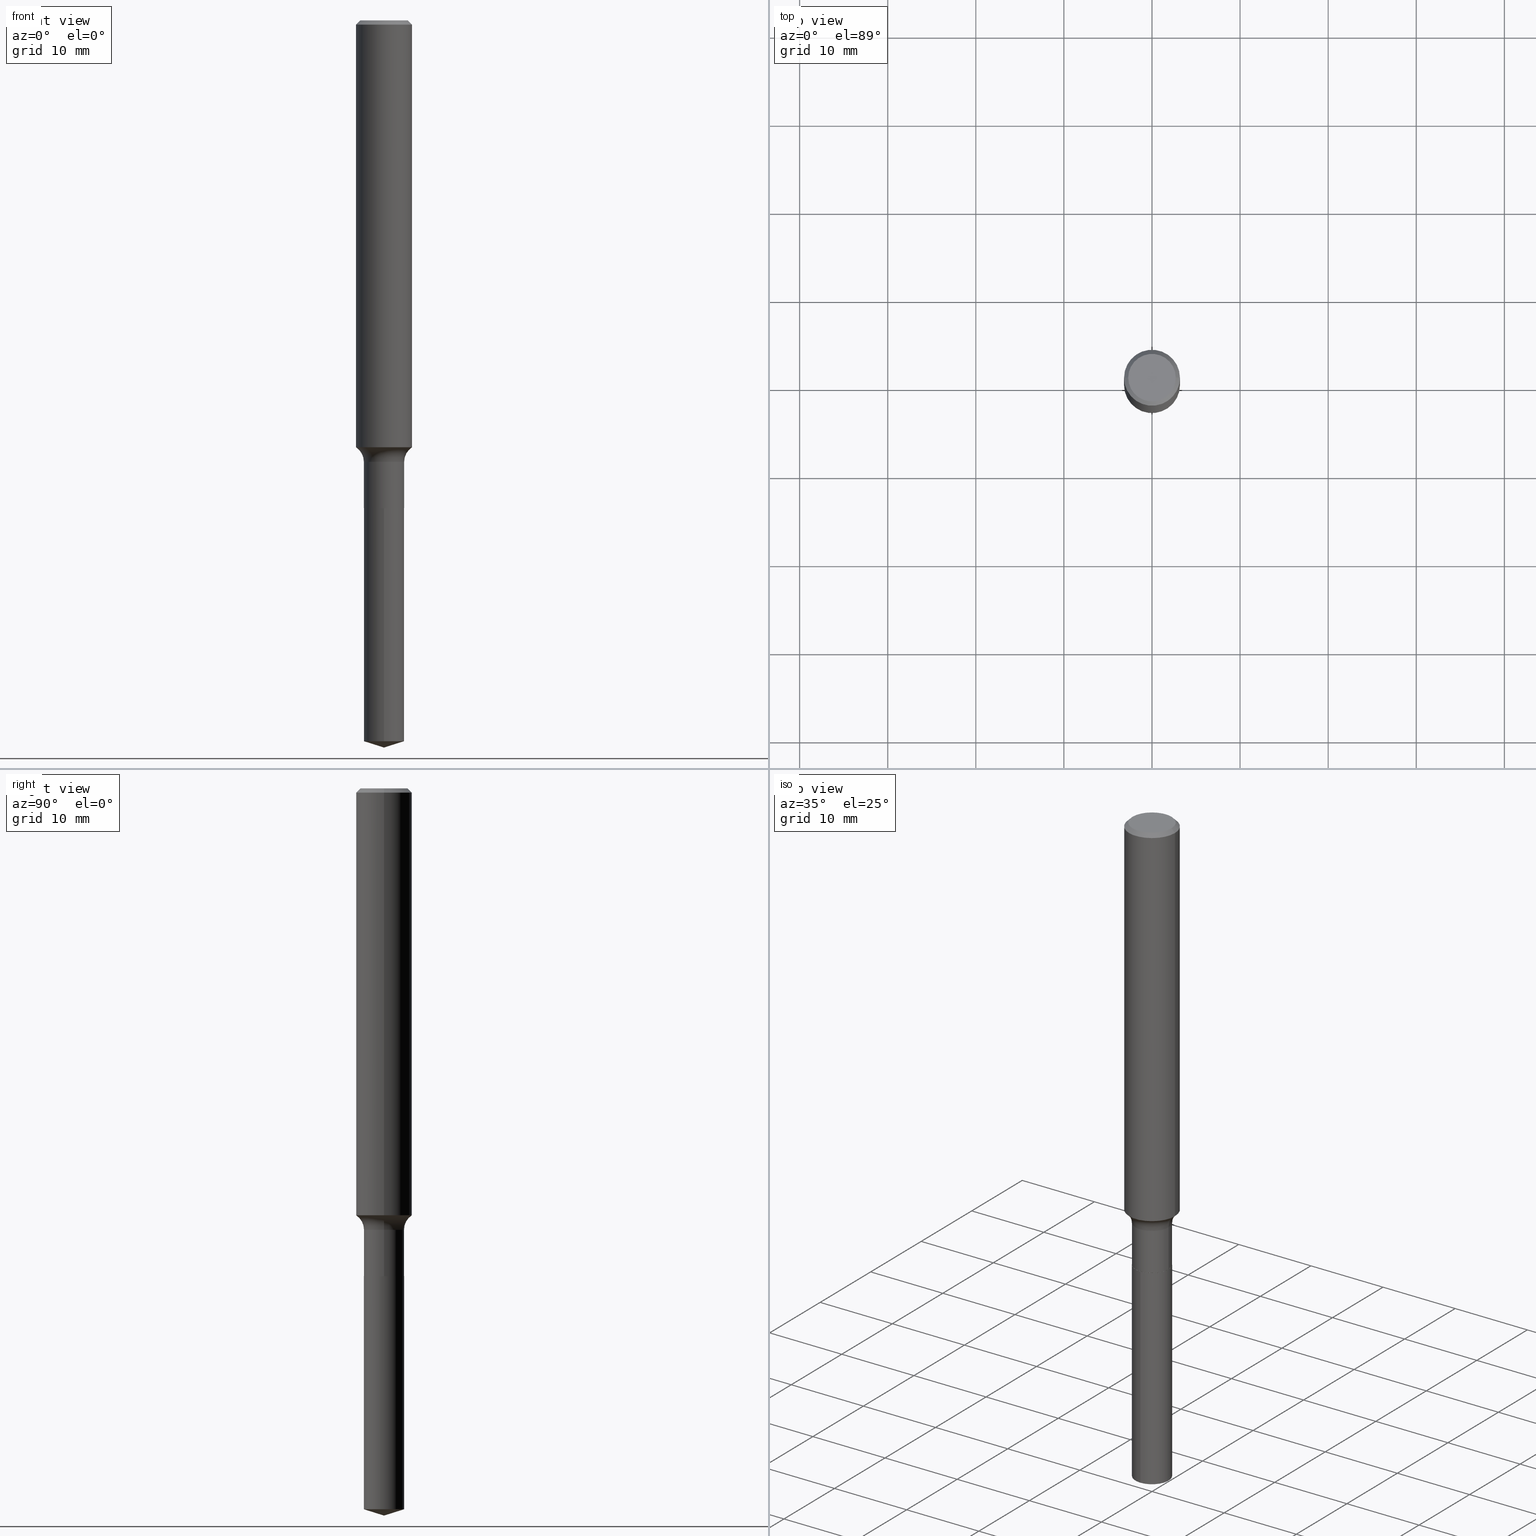
[diagram: canonical four-view strip — front | top / right | iso, engineering-drawing reading convention]
A machine part, canonical four-view strip (front | top / right | iso — engineering-drawing reading convention). The complete STEP part file that produces these views, byte-faithful:
ISO-10303-21;
HEADER;
FILE_DESCRIPTION (( 'STEP AP203' ),
    '1' );
FILE_NAME ('52327.STEP',
    '2024-04-19T13:40:41',
    ( '' ),
    ( '' ),
    'SwSTEP 2.0',
    'SolidWorks 2023',
    '' );
FILE_SCHEMA (( 'CONFIG_CONTROL_DESIGN' ));
ENDSEC;

DATA;
#1 = ORIENTED_EDGE ( 'NONE', *, *, #49, .T. ) ;
#2 = VECTOR ( 'NONE', #419, 39.37007874015748143 ) ;
#3 = DIRECTION ( 'NONE',  ( 0.7071067811865447972, -7.319954787623245001E-15, -0.7071067811865501263 ) ) ;
#4 = ADVANCED_FACE ( 'NONE', ( #385 ), #308, .T. ) ;
#5 = ADVANCED_FACE ( 'NONE', ( #84 ), #61, .T. ) ;
#6 = VERTEX_POINT ( 'NONE', #343 ) ;
#7 = ADVANCED_FACE ( 'NONE', ( #234 ), #381, .F. ) ;
#8 = CARTESIAN_POINT ( 'NONE',  ( 0.000000000000000000, 0.000000000000000000, 0.000000000000000000 ) ) ;
#9 = ORIENTED_EDGE ( 'NONE', *, *, #406, .T. ) ;
#10 = ORIENTED_EDGE ( 'NONE', *, *, #340, .T. ) ;
#11 = AXIS2_PLACEMENT_3D ( 'NONE', #395, #247, #356 ) ;
#12 = CARTESIAN_POINT ( 'NONE',  ( 0.000000000000000000, 0.000000000000000000, 0.000000000000000000 ) ) ;
#13 = ORIENTED_EDGE ( 'NONE', *, *, #139, .F. ) ;
#14 = LINE ( 'NONE', #251, #397 ) ;
#15 = LINE ( 'NONE', #432, #382 ) ;
#16 = CARTESIAN_POINT ( 'NONE',  ( -0.1062499999999999972, 7.746724220558198188E-16, 6.505936120465015526E-18 ) ) ;
#17 = LINE ( 'NONE', #54, #179 ) ;
#18 = AXIS2_PLACEMENT_3D ( 'NONE', #211, #243, #160 ) ;
#19 = ADVANCED_FACE ( 'NONE', ( #127 ), #421, .T. ) ;
#20 = CALENDAR_DATE ( 2024, 19, 4 ) ;
#21 = CIRCLE ( 'NONE', #422, 0.1250000000000000000 ) ;
#22 = CARTESIAN_POINT ( 'NONE',  ( 5.331121997483597646E-29, -7.611429318678056905E-15, -2.180000000000000160 ) ) ;
#23 = CIRCLE ( 'NONE', #287, 0.08999999999999999667 ) ;
#24 = ORIENTED_EDGE ( 'NONE', *, *, #325, .T. ) ;
#25 = SHAPE_DEFINITION_REPRESENTATION ( #490, #173 ) ;
#26 = CYLINDRICAL_SURFACE ( 'NONE', #403, 0.1250000000000001110 ) ;
#27 = ORIENTED_EDGE ( 'NONE', *, *, #172, .F. ) ;
#28 = CARTESIAN_POINT ( 'NONE',  ( 7.947831552913192998E-29, -1.134723235276303104E-14, -3.250000000000000000 ) ) ;
#29 = APPROVAL ( #60, 'UNSPECIFIED' ) ;
#30 = ORIENTED_EDGE ( 'NONE', *, *, #52, .T. ) ;
#31 = VECTOR ( 'NONE', #407, 39.37007874015748143 ) ;
#32 = VERTEX_POINT ( 'NONE', #470 ) ;
#33 = FACE_OUTER_BOUND ( 'NONE', #157, .T. ) ;
#34 = VERTEX_POINT ( 'NONE', #359 ) ;
#35 = CARTESIAN_POINT ( 'NONE',  ( 6.394884621841690297E-16, 0.08999999999999239164, -2.180000000000000160 ) ) ;
#36 = DIRECTION ( 'NONE',  ( 1.000000000000000000, -6.982962677686262766E-15, 0.000000000000000000 ) ) ;
#37 = DIRECTION ( 'NONE',  ( -1.000000000000000000, 7.105427357601001859E-15, 0.000000000000000000 ) ) ;
#38 = VERTEX_POINT ( 'NONE', #369 ) ;
#39 = CONICAL_SURFACE ( 'NONE', #88, 124.8659371009120775, 1.265363707695884798 ) ;
#40 = FACE_OUTER_BOUND ( 'NONE', #332, .T. ) ;
#41 = ORIENTED_EDGE ( 'NONE', *, *, #193, .T. ) ;
#42 = ORIENTED_EDGE ( 'NONE', *, *, #358, .F. ) ;
#43 = ORIENTED_EDGE ( 'NONE', *, *, #187, .T. ) ;
#44 = CONICAL_SURFACE ( 'NONE', #55, 124.8659371009120775, 1.265363707695884798 ) ;
#45 = AXIS2_PLACEMENT_3D ( 'NONE', #284, #175, #469 ) ;
#46 =( NAMED_UNIT ( * ) PLANE_ANGLE_UNIT ( ) SI_UNIT ( $, .RADIAN. ) );
#47 = DIRECTION ( 'NONE',  ( -6.982962677686265133E-15, -1.000000000000000000, 6.070773319253918263E-15 ) ) ;
#48 = CYLINDRICAL_SURFACE ( 'NONE', #114, 0.08999999999999999667 ) ;
#49 = EDGE_CURVE ( 'NONE', #112, #131, #295, .T. ) ;
#50 = UNCERTAINTY_MEASURE_WITH_UNIT (LENGTH_MEASURE( 1.000000000000000082E-05 ), #386, 'distance_accuracy_value', 'NONE');
#51 = DIRECTION ( 'NONE',  ( -2.445486424409932831E-29, 3.491456108542470269E-15, 1.000000000000000000 ) ) ;
#52 = EDGE_CURVE ( 'NONE', #34, #350, #445, .T. ) ;
#53 = CARTESIAN_POINT ( 'NONE',  ( 4.585254011597165626E-31, -6.546527510330947764E-17, -0.01875000000000014155 ) ) ;
#54 = CARTESIAN_POINT ( 'NONE',  ( -0.1250000000000001110, 8.881784197001260212E-16, -6.148668862818637832E-30 ) ) ;
#55 = AXIS2_PLACEMENT_3D ( 'NONE', #435, #333, #371 ) ;
#56 = CONICAL_SURFACE ( 'NONE', #391, 0.1250000000000000000, 0.7853981633974445042 ) ;
#57 = DATE_AND_TIME ( #20, #206 ) ;
#58 = ADVANCED_FACE ( 'NONE', ( #68 ), #394, .F. ) ;
#59 = DATE_TIME_ROLE ( 'creation_date' ) ;
#60 = APPROVAL_STATUS ( 'not_yet_approved' ) ;
#61 = CONICAL_SURFACE ( 'NONE', #314, 0.08949999999999999623, 0.7853981633975507526 ) ;
#62 = AXIS2_PLACEMENT_3D ( 'NONE', #203, #434, #425 ) ;
#63 = CARTESIAN_POINT ( 'NONE',  ( 0.1679999999999999549, -8.061830411388819025E-15, -1.973000000000000309 ) ) ;
#64 = AXIS2_PLACEMENT_3D ( 'NONE', #378, #341, #492 ) ;
#65 = APPROVAL_PERSON_ORGANIZATION ( #141, #360, #324 ) ;
#66 = ORIENTED_EDGE ( 'NONE', *, *, #89, .T. ) ;
#67 = PERSON_AND_ORGANIZATION ( #456, #383 ) ;
#68 = FACE_OUTER_BOUND ( 'NONE', #370, .T. ) ;
#69 = ORIENTED_EDGE ( 'NONE', *, *, #146, .F. ) ;
#70 = FACE_OUTER_BOUND ( 'NONE', #123, .T. ) ;
#71 = EDGE_LOOP ( 'NONE', ( #43, #218, #77, #27 ) ) ;
#72 = CARTESIAN_POINT ( 'NONE',  ( 4.824909954603274806E-29, -6.888692681537526817E-15, -1.973000000000000309 ) ) ;
#73 = AXIS2_PLACEMENT_3D ( 'NONE', #213, #335, #174 ) ;
#74 = CIRCLE ( 'NONE', #374, 0.08999999999999999667 ) ;
#75 = PRODUCT_RELATED_PRODUCT_CATEGORY ( 'detail', '', ( #433 ) ) ;
#76 = LOCAL_TIME ( 9, 40, 41.00000000000000000, #323 ) ;
#77 = ORIENTED_EDGE ( 'NONE', *, *, #427, .F. ) ;
#78 = DIRECTION ( 'NONE',  ( 2.445468806185136597E-29, -3.491481338843145583E-15, -1.000000000000000000 ) ) ;
#79 = EDGE_CURVE ( 'NONE', #240, #189, #149, .T. ) ;
#80 = MANIFOLD_SOLID_BREP ( 'Body-Move/Copy2[2]', #86 ) ;
#81 = ORIENTED_EDGE ( 'NONE', *, *, #82, .F. ) ;
#82 = EDGE_CURVE ( 'NONE', #451, #366, #17, .T. ) ;
#83 = DIRECTION ( 'NONE',  ( -2.445468806185136597E-29, 3.491481338843145583E-15, 1.000000000000000000 ) ) ;
#84 = FACE_OUTER_BOUND ( 'NONE', #272, .T. ) ;
#85 = DIRECTION ( 'NONE',  ( 1.000000000000000000, -6.982962677686264344E-15, 0.000000000000000000 ) ) ;
#86 = CLOSED_SHELL ( 'NONE', ( #313, #486, #130, #192, #298, #19, #354, #342, #245, #7, #58, #5 ) ) ;
#87 = CARTESIAN_POINT ( 'NONE',  ( 0.000000000000000000, 0.000000000000000000, 0.000000000000000000 ) ) ;
#88 = AXIS2_PLACEMENT_3D ( 'NONE', #452, #196, #124 ) ;
#89 = EDGE_CURVE ( 'NONE', #186, #197, #236, .T. ) ;
#90 = DIRECTION ( 'NONE',  ( -2.445468806185136597E-29, 3.491481338843145583E-15, 1.000000000000000000 ) ) ;
#91 = ORIENTED_EDGE ( 'NONE', *, *, #79, .F. ) ;
#92 = DIRECTION ( 'NONE',  ( -2.445468806185136597E-29, 3.491481338843145583E-15, 1.000000000000000000 ) ) ;
#93 = ORIENTED_EDGE ( 'NONE', *, *, #170, .T. ) ;
#94 = ADVANCED_FACE ( 'NONE', ( #151 ), #44, .T. ) ;
#95 = DIRECTION ( 'NONE',  ( -6.982962677686265133E-15, -1.000000000000000000, 3.035386659626959132E-15 ) ) ;
#96 = DIRECTION ( 'NONE',  ( -2.445468806185136597E-29, 3.491481338843145583E-15, 1.000000000000000000 ) ) ;
#97 = CIRCLE ( 'NONE', #365, 0.08999999999999998279 ) ;
#98 = CIRCLE ( 'NONE', #64, 0.08999999999999999667 ) ;
#99 = CC_DESIGN_PERSON_AND_ORGANIZATION_ASSIGNMENT ( #255, #329, ( #229 ) ) ;
#100 = LINE ( 'NONE', #171, #299 ) ;
#101 = DIRECTION ( 'NONE',  ( 0.7071067811866199593, -2.468850131083015945E-15, 0.7071067811864750752 ) ) ;
#102 = EDGE_CURVE ( 'NONE', #112, #240, #269, .T. ) ;
#103 = DIRECTION ( 'NONE',  ( -2.445468806185136597E-29, 3.491481338843145583E-15, 1.000000000000000000 ) ) ;
#104 = DESIGN_CONTEXT ( 'detailed design', #162, 'design' ) ;
#105 = DIRECTION ( 'NONE',  ( 1.000000000000000000, -6.982962677686267499E-15, 4.876176775795936353E-29 ) ) ;
#106 = DATE_AND_TIME ( #138, #76 ) ;
#107 = EDGE_CURVE ( 'NONE', #116, #125, #454, .T. ) ;
#108 = APPROVAL_DATE_TIME ( #217, #331 ) ;
#109 = CIRCLE ( 'NONE', #45, 0.1250000000000002498 ) ;
#110 = PERSON_AND_ORGANIZATION ( #456, #383 ) ;
#111 = CARTESIAN_POINT ( 'NONE',  ( 6.394884621841432931E-16, 0.08999999999999237776, -2.180000000000000160 ) ) ;
#112 = VERTEX_POINT ( 'NONE', #260 ) ;
#113 = CC_DESIGN_DATE_AND_TIME_ASSIGNMENT ( #57, #293, ( #439 ) ) ;
#114 = AXIS2_PLACEMENT_3D ( 'NONE', #393, #361, #472 ) ;
#115 = CARTESIAN_POINT ( 'NONE',  ( 4.824909954603274806E-29, -6.888692681537526817E-15, -1.973000000000000309 ) ) ;
#116 = VERTEX_POINT ( 'NONE', #429 ) ;
#117 = CARTESIAN_POINT ( 'NONE',  ( 0.000000000000000000, 0.000000000000000000, 0.000000000000000000 ) ) ;
#118 = DIRECTION ( 'NONE',  ( 6.982962677686265922E-15, 1.000000000000000000, -3.491456108542470269E-15 ) ) ;
#119 = ORIENTED_EDGE ( 'NONE', *, *, #242, .F. ) ;
#120 = EDGE_CURVE ( 'NONE', #366, #32, #21, .T. ) ;
#121 = LINE ( 'NONE', #198, #2 ) ;
#122 = APPROVAL_PERSON_ORGANIZATION ( #401, #29, #178 ) ;
#123 = EDGE_LOOP ( 'NONE', ( #222, #416, #372, #491 ) ) ;
#124 = DIRECTION ( 'NONE',  ( -6.982962677686265922E-15, -1.000000000000000000, 3.500519750498788051E-15 ) ) ;
#125 = VERTEX_POINT ( 'NONE', #221 ) ;
#126 = CARTESIAN_POINT ( 'NONE',  ( 5.331121997483597646E-29, -7.611429318678056905E-15, -2.180000000000000160 ) ) ;
#127 = FACE_OUTER_BOUND ( 'NONE', #483, .T. ) ;
#128 = CARTESIAN_POINT ( 'NONE',  ( 5.331121997483597646E-29, -7.611429318678056905E-15, -2.180000000000000160 ) ) ;
#129 = AXIS2_PLACEMENT_3D ( 'NONE', #126, #228, #118 ) ;
#130 = ADVANCED_FACE ( 'NONE', ( #286 ), #26, .T. ) ;
#131 = VERTEX_POINT ( 'NONE', #188 ) ;
#132 = DIRECTION ( 'NONE',  ( 1.000000000000000000, 0.000000000000000000, 0.000000000000000000 ) ) ;
#133 = VERTEX_POINT ( 'NONE', #330 ) ;
#134 = CARTESIAN_POINT ( 'NONE',  ( -0.1250000000000000000, -2.475293206730392675E-15, -0.01875000000000014155 ) ) ;
#135 = CARTESIAN_POINT ( 'NONE',  ( 4.585254011597165626E-31, -6.546527510330947764E-17, -0.01875000000000014155 ) ) ;
#136 = CARTESIAN_POINT ( 'NONE',  ( -0.1250000000000001943, -5.773299558057605382E-15, -1.907923122385904335 ) ) ;
#137 = CARTESIAN_POINT ( 'NONE',  ( 5.329899263080504845E-29, -7.609683578008636190E-15, -2.179499999999999993 ) ) ;
#138 = CALENDAR_DATE ( 2024, 19, 4 ) ;
#139 = EDGE_CURVE ( 'NONE', #38, #350, #97, .T. ) ;
#140 = VECTOR ( 'NONE', #145, 39.37007874015748143 ) ;
#141 = PERSON_AND_ORGANIZATION ( #456, #383 ) ;
#142 = CONICAL_SURFACE ( 'NONE', #478, 0.08949999999999999623, 0.7853981633975507526 ) ;
#143 = LOCAL_TIME ( 9, 40, 41.00000000000000000, #180 ) ;
#144 = COORDINATED_UNIVERSAL_TIME_OFFSET ( 5, 0, .BEHIND. ) ;
#145 = DIRECTION ( 'NONE',  ( -2.445486424409932551E-29, 3.491456108542470269E-15, 1.000000000000000000 ) ) ;
#146 = EDGE_CURVE ( 'NONE', #133, #240, #263, .T. ) ;
#147 = ORIENTED_EDGE ( 'NONE', *, *, #427, .T. ) ;
#148 = APPROVAL_DATE_TIME ( #106, #360 ) ;
#149 = LINE ( 'NONE', #111, #140 ) ;
#150 = DIMENSIONAL_EXPONENTS ( 1.000000000000000000, 0.000000000000000000, 0.000000000000000000, 0.000000000000000000, 0.000000000000000000, 0.000000000000000000, 0.000000000000000000 ) ;
#151 = FACE_OUTER_BOUND ( 'NONE', #268, .T. ) ;
#152 = DIRECTION ( 'NONE',  ( -1.000000000000000000, 6.982962677686266711E-15, 0.000000000000000000 ) ) ;
#153 = ORIENTED_EDGE ( 'NONE', *, *, #102, .F. ) ;
#154 = CARTESIAN_POINT ( 'NONE',  ( 0.08999999999999998279, -7.517159322529290979E-15, -1.973000000000000309 ) ) ;
#155 = FACE_OUTER_BOUND ( 'NONE', #296, .T. ) ;
#156 = AXIS2_PLACEMENT_3D ( 'NONE', #72, #337, #349 ) ;
#157 = EDGE_LOOP ( 'NONE', ( #147, #312, #169, #467 ) ) ;
#158 = DIRECTION ( 'NONE',  ( -6.982962677686265133E-15, -1.000000000000000000, 3.035386659626959132E-15 ) ) ;
#159 = DIRECTION ( 'NONE',  ( 2.438088387897960049E-29, -3.491481338843145188E-15, -1.000000000000000000 ) ) ;
#160 = DIRECTION ( 'NONE',  ( -1.000000000000000000, 6.982962677686266711E-15, 0.000000000000000000 ) ) ;
#161 = ORIENTED_EDGE ( 'NONE', *, *, #187, .F. ) ;
#162 = APPLICATION_CONTEXT ( 'configuration controlled 3d designs of mechanical parts and assemblies' ) ;
#163 =( NAMED_UNIT ( * ) SI_UNIT ( $, .STERADIAN. ) SOLID_ANGLE_UNIT ( ) );
#164 = CC_DESIGN_DATE_AND_TIME_ASSIGNMENT ( #400, #59, ( #443 ) ) ;
#165 = ORIENTED_EDGE ( 'NONE', *, *, #257, .F. ) ;
#166 = CIRCLE ( 'NONE', #438, 0.1250000000000000000 ) ;
#167 = CC_DESIGN_APPROVAL ( #331, ( #229 ) ) ;
#168 = FACE_OUTER_BOUND ( 'NONE', #351, .T. ) ;
#169 = ORIENTED_EDGE ( 'NONE', *, *, #193, .F. ) ;
#170 = EDGE_CURVE ( 'NONE', #6, #404, #220, .T. ) ;
#171 = CARTESIAN_POINT ( 'NONE',  ( 0.1250000000000001110, -8.728703347107842263E-16, 6.095220969744926047E-30 ) ) ;
#172 = EDGE_CURVE ( 'NONE', #125, #197, #15, .T. ) ;
#173 = ADVANCED_BREP_SHAPE_REPRESENTATION ( '52327', ( #399, #80, #279 ), #215 ) ;
#174 = DIRECTION ( 'NONE',  ( 1.000000000000000000, -6.982962677686265922E-15, 4.876176775795935793E-29 ) ) ;
#175 = DIRECTION ( 'NONE',  ( -2.445468806185136597E-29, 3.491481338843145583E-15, 1.000000000000000000 ) ) ;
#176 = DIRECTION ( 'NONE',  ( -2.445468806185136597E-29, 3.491481338843145583E-15, 1.000000000000000000 ) ) ;
#177 = APPROVAL_DATE_TIME ( #367, #29 ) ;
#178 = APPROVAL_ROLE ( '' ) ;
#179 = VECTOR ( 'NONE', #482, 39.37007874015748143 ) ;
#180 = COORDINATED_UNIVERSAL_TIME_OFFSET ( 5, 0, .BEHIND. ) ;
#181 = AXIS2_PLACEMENT_3D ( 'NONE', #412, #271, #158 ) ;
#182 = APPROVAL_PERSON_ORGANIZATION ( #405, #331, #216 ) ;
#183 = CARTESIAN_POINT ( 'NONE',  ( -6.284666409917106178E-16, -0.09000000000000761557, -2.179999999999999716 ) ) ;
#184 = ORIENTED_EDGE ( 'NONE', *, *, #468, .T. ) ;
#185 = DIRECTION ( 'NONE',  ( -2.445468806185136597E-29, 3.491481338843145583E-15, 1.000000000000000000 ) ) ;
#186 = VERTEX_POINT ( 'NONE', #250 ) ;
#187 = EDGE_CURVE ( 'NONE', #125, #116, #352, .T. ) ;
#188 = CARTESIAN_POINT ( 'NONE',  ( -6.284666409917106178E-16, -0.09000000000000761557, -2.179999999999999716 ) ) ;
#189 = VERTEX_POINT ( 'NONE', #35 ) ;
#190 = AXIS2_PLACEMENT_3D ( 'NONE', #210, #176, #322 ) ;
#191 = DIRECTION ( 'NONE',  ( -2.445468806185136877E-29, 3.491481338843145188E-15, 1.000000000000000000 ) ) ;
#192 = ADVANCED_FACE ( 'NONE', ( #380 ), #345, .F. ) ;
#193 = EDGE_CURVE ( 'NONE', #350, #38, #248, .T. ) ;
#194 = FACE_OUTER_BOUND ( 'NONE', #71, .T. ) ;
#195 = ORIENTED_EDGE ( 'NONE', *, *, #301, .T. ) ;
#196 = DIRECTION ( 'NONE',  ( -2.445486424409932831E-29, 3.491456108542470269E-15, 1.000000000000000000 ) ) ;
#197 = VERTEX_POINT ( 'NONE', #309 ) ;
#198 = CARTESIAN_POINT ( 'NONE',  ( -0.08999999999999999667, 6.394884621840901436E-16, -4.427041581229415120E-30 ) ) ;
#199 = AXIS2_PLACEMENT_3D ( 'NONE', #8, #265, #373 ) ;
#200 = ORIENTED_EDGE ( 'NONE', *, *, #237, .T. ) ;
#201 = DIRECTION ( 'NONE',  ( 1.000000000000000000, -6.982962677686268288E-15, 4.883557194083113462E-29 ) ) ;
#202 = ORIENTED_EDGE ( 'NONE', *, *, #89, .F. ) ;
#203 = CARTESIAN_POINT ( 'NONE',  ( -1.591006383764330940E-46, 2.271535455632768948E-32, 6.505936120470318766E-18 ) ) ;
#204 = DIRECTION ( 'NONE',  ( -6.982962677686265133E-15, -1.000000000000000000, 3.035386659626959132E-15 ) ) ;
#205 = ORIENTED_EDGE ( 'NONE', *, *, #120, .F. ) ;
#206 = LOCAL_TIME ( 9, 40, 41.00000000000000000, #144 ) ;
#207 = FACE_OUTER_BOUND ( 'NONE', #277, .T. ) ;
#208 = CARTESIAN_POINT ( 'NONE',  ( 0.000000000000000000, 0.000000000000000000, 0.000000000000000000 ) ) ;
#209 = DIRECTION ( 'NONE',  ( -0.7071067811866199593, 7.493145998870616062E-15, 0.7071067811864750752 ) ) ;
#210 = CARTESIAN_POINT ( 'NONE',  ( 5.331121997483597646E-29, -7.611429318678056905E-15, -2.180000000000000160 ) ) ;
#211 = CARTESIAN_POINT ( 'NONE',  ( 4.585254011597165626E-31, -6.546527510330947764E-17, -0.01875000000000014155 ) ) ;
#212 = EDGE_CURVE ( 'NONE', #197, #350, #300, .T. ) ;
#213 = CARTESIAN_POINT ( 'NONE',  ( 5.331121997483597646E-29, -7.611429318678056905E-15, -2.180000000000000160 ) ) ;
#214 = CC_DESIGN_PERSON_AND_ORGANIZATION_ASSIGNMENT ( #67, #398, ( #439 ) ) ;
#215 =( GEOMETRIC_REPRESENTATION_CONTEXT ( 3 ) GLOBAL_UNCERTAINTY_ASSIGNED_CONTEXT ( ( #50 ) ) GLOBAL_UNIT_ASSIGNED_CONTEXT ( ( #386, #46, #163 ) ) REPRESENTATION_CONTEXT ( 'NONE', 'WORKASPACE' ) );
#216 = APPROVAL_ROLE ( '' ) ;
#217 = DATE_AND_TIME ( #481, #143 ) ;
#218 = ORIENTED_EDGE ( 'NONE', *, *, #358, .T. ) ;
#219 = COORDINATED_UNIVERSAL_TIME_OFFSET ( 5, 0, .BEHIND. ) ;
#220 = CIRCLE ( 'NONE', #11, 0.1062499999999999972 ) ;
#221 = CARTESIAN_POINT ( 'NONE',  ( 0.08949999999999999623, -8.236404478330977270E-15, -2.180000000000000160 ) ) ;
#222 = ORIENTED_EDGE ( 'NONE', *, *, #237, .F. ) ;
#223 = CALENDAR_DATE ( 2024, 19, 4 ) ;
#224 = DIRECTION ( 'NONE',  ( -6.982962677686266711E-15, -1.000000000000000000, 3.491481338843145583E-15 ) ) ;
#225 = CARTESIAN_POINT ( 'NONE',  ( 0.1250000000000000000, -9.230275248247509846E-16, -0.01875000000000014155 ) ) ;
#226 = ORIENTED_EDGE ( 'NONE', *, *, #406, .F. ) ;
#227 = CIRCLE ( 'NONE', #270, 0.1250000000000002498 ) ;
#228 = DIRECTION ( 'NONE',  ( 2.445486424409932551E-29, -3.491456108542470269E-15, -1.000000000000000000 ) ) ;
#229 = PRODUCT_DEFINITION_FORMATION_WITH_SPECIFIED_SOURCE ( 'ANY', '', #433, .NOT_KNOWN. ) ;
#230 = EDGE_LOOP ( 'NONE', ( #226, #24, #305, #302 ) ) ;
#231 = CARTESIAN_POINT ( 'NONE',  ( 0.08999999999999999667, -6.284666409917639645E-16, 4.388559098216341933E-30 ) ) ;
#232 = ORIENTED_EDGE ( 'NONE', *, *, #82, .T. ) ;
#233 = CARTESIAN_POINT ( 'NONE',  ( 4.824909954603274806E-29, -6.888692681537526817E-15, -1.973000000000000309 ) ) ;
#234 = FACE_OUTER_BOUND ( 'NONE', #389, .T. ) ;
#235 = DIRECTION ( 'NONE',  ( -2.445468806185136597E-29, 3.491481338843145583E-15, 1.000000000000000000 ) ) ;
#236 = CIRCLE ( 'NONE', #413, 0.08999999999999999667 ) ;
#237 = EDGE_CURVE ( 'NONE', #6, #32, #487, .T. ) ;
#238 = CONICAL_SURFACE ( 'NONE', #18, 0.1250000000000000000, 0.7853981633974445042 ) ;
#239 = ADVANCED_FACE ( 'NONE', ( #267 ), #39, .T. ) ;
#240 = VERTEX_POINT ( 'NONE', #449 ) ;
#241 = ORIENTED_EDGE ( 'NONE', *, *, #430, .T. ) ;
#242 = EDGE_CURVE ( 'NONE', #404, #366, #303, .T. ) ;
#243 = DIRECTION ( 'NONE',  ( 2.445468806185136597E-29, -3.491481338843145583E-15, -1.000000000000000000 ) ) ;
#244 = ORIENTED_EDGE ( 'NONE', *, *, #301, .F. ) ;
#245 = ADVANCED_FACE ( 'NONE', ( #70 ), #56, .T. ) ;
#246 = AXIS2_PLACEMENT_3D ( 'NONE', #22, #185, #485 ) ;
#247 = DIRECTION ( 'NONE',  ( -2.445468806185136597E-29, 3.491481338843145583E-15, 1.000000000000000000 ) ) ;
#248 = CIRCLE ( 'NONE', #156, 0.08999999999999998279 ) ;
#249 = DIRECTION ( 'NONE',  ( -2.445486424409932831E-29, 3.491456108542470269E-15, 1.000000000000000000 ) ) ;
#250 = CARTESIAN_POINT ( 'NONE',  ( -0.08999999999999999667, -6.609699667588991163E-15, -2.179499999999999993 ) ) ;
#251 = CARTESIAN_POINT ( 'NONE',  ( -0.08949999999999999623, -6.975493570172767857E-15, -2.180000000000000160 ) ) ;
#252 = DIRECTION ( 'NONE',  ( 1.000000000000000000, -6.982962677686269866E-15, 0.000000000000000000 ) ) ;
#253 = SECURITY_CLASSIFICATION_LEVEL ( 'unclassified' ) ;
#254 = AXIS2_PLACEMENT_3D ( 'NONE', #117, #455, #273 ) ;
#255 = PERSON_AND_ORGANIZATION ( #456, #383 ) ;
#256 = PERSON_AND_ORGANIZATION_ROLE ( 'creator' ) ;
#257 = EDGE_CURVE ( 'NONE', #240, #112, #98, .T. ) ;
#258 = ADVANCED_FACE ( 'NONE', ( #155 ), #450, .F. ) ;
#259 = PERSON_AND_ORGANIZATION ( #456, #383 ) ;
#260 = CARTESIAN_POINT ( 'NONE',  ( -6.284666409916853742E-16, -0.09000000000001129319, -3.221623109000890661 ) ) ;
#261 = ORIENTED_EDGE ( 'NONE', *, *, #146, .T. ) ;
#262 = AXIS2_PLACEMENT_3D ( 'NONE', #384, #338, #37 ) ;
#263 = LINE ( 'NONE', #28, #31 ) ;
#264 = ORIENTED_EDGE ( 'NONE', *, *, #212, .T. ) ;
#265 = DIRECTION ( 'NONE',  ( -2.445468806185136597E-29, 3.491481338843145583E-15, 1.000000000000000000 ) ) ;
#266 = ORIENTED_EDGE ( 'NONE', *, *, #430, .F. ) ;
#267 = FACE_OUTER_BOUND ( 'NONE', #377, .T. ) ;
#268 = EDGE_LOOP ( 'NONE', ( #69, #464, #165 ) ) ;
#269 = CIRCLE ( 'NONE', #327, 0.08999999999999999667 ) ;
#270 = AXIS2_PLACEMENT_3D ( 'NONE', #409, #415, #85 ) ;
#271 = DIRECTION ( 'NONE',  ( -2.445486424409932831E-29, 3.491456108542470269E-15, 1.000000000000000000 ) ) ;
#272 = EDGE_LOOP ( 'NONE', ( #42, #317, #339, #202 ) ) ;
#273 = DIRECTION ( 'NONE',  ( 1.000000000000000000, -6.982962677686266711E-15, 4.876176775795935793E-29 ) ) ;
#274 = ORIENTED_EDGE ( 'NONE', *, *, #49, .F. ) ;
#275 = DIRECTION ( 'NONE',  ( 1.000000000000000000, -6.982962677686262766E-15, 0.000000000000000000 ) ) ;
#276 = CC_DESIGN_PERSON_AND_ORGANIZATION_ASSIGNMENT ( #110, #256, ( #443 ) ) ;
#277 = EDGE_LOOP ( 'NONE', ( #448, #200, #184, #119 ) ) ;
#278 = LENGTH_MEASURE_WITH_UNIT ( LENGTH_MEASURE( 0.02539999999999999897 ), #460 );
#279 = AXIS2_PLACEMENT_3D ( 'NONE', #12, #465, #132 ) ;
#280 = ORIENTED_EDGE ( 'NONE', *, *, #368, .F. ) ;
#281 = ORIENTED_EDGE ( 'NONE', *, *, #107, .F. ) ;
#282 = DIRECTION ( 'NONE',  ( -2.445468806185136877E-29, 3.491481338843145188E-15, 1.000000000000000000 ) ) ;
#283 = ORIENTED_EDGE ( 'NONE', *, *, #364, .F. ) ;
#284 = CARTESIAN_POINT ( 'NONE',  ( 4.665766480394075880E-29, -6.661477977757731403E-15, -1.907923122385904335 ) ) ;
#285 = AXIS2_PLACEMENT_3D ( 'NONE', #348, #159, #310 ) ;
#286 = FACE_OUTER_BOUND ( 'NONE', #459, .T. ) ;
#287 = AXIS2_PLACEMENT_3D ( 'NONE', #320, #249, #95 ) ;
#288 = CARTESIAN_POINT ( 'NONE',  ( 7.947754063872170330E-29, -1.134734235687397367E-14, -3.250000000000000000 ) ) ;
#289 = DIRECTION ( 'NONE',  ( -2.445468806185136597E-29, 3.491481338843145583E-15, 1.000000000000000000 ) ) ;
#290 = COORDINATED_UNIVERSAL_TIME_OFFSET ( 5, 0, .BEHIND. ) ;
#291 = AXIS2_PLACEMENT_3D ( 'NONE', #355, #103, #357 ) ;
#292 = APPLICATION_PROTOCOL_DEFINITION ( 'international standard', 'config_control_design', 1994, #162 ) ;
#293 = DATE_TIME_ROLE ( 'classification_date' ) ;
#294 = DIRECTION ( 'NONE',  ( -2.445468806185136597E-29, 3.491481338843145583E-15, 1.000000000000000000 ) ) ;
#295 = LINE ( 'NONE', #183, #471 ) ;
#296 = EDGE_LOOP ( 'NONE', ( #195, #241 ) ) ;
#297 = CLOSED_SHELL ( 'NONE', ( #436, #239, #94, #4, #258 ) ) ;
#298 = ADVANCED_FACE ( 'NONE', ( #33 ), #376, .T. ) ;
#299 = VECTOR ( 'NONE', #282, 39.37007874015748143 ) ;
#300 = LINE ( 'NONE', #231, #473 ) ;
#301 = EDGE_CURVE ( 'NONE', #131, #189, #321, .T. ) ;
#302 = ORIENTED_EDGE ( 'NONE', *, *, #52, .F. ) ;
#303 = LINE ( 'NONE', #307, #336 ) ;
#304 = FACE_OUTER_BOUND ( 'NONE', #457, .T. ) ;
#305 = ORIENTED_EDGE ( 'NONE', *, *, #139, .T. ) ;
#306 = CIRCLE ( 'NONE', #262, 0.07799999999999995826 ) ;
#307 = CARTESIAN_POINT ( 'NONE',  ( -0.1250000000000000000, 8.074050596074738982E-16, -0.01875000000000014155 ) ) ;
#308 = CYLINDRICAL_SURFACE ( 'NONE', #390, 0.08999999999999999667 ) ;
#309 = CARTESIAN_POINT ( 'NONE',  ( 0.08999999999999999667, -8.238150219000399563E-15, -2.179499999999999993 ) ) ;
#310 = DIRECTION ( 'NONE',  ( -1.000000000000000000, 6.982962677686265922E-15, -4.876176775795935793E-29 ) ) ;
#311 = DIRECTION ( 'NONE',  ( 1.000000000000000000, -6.982962677686269077E-15, 0.000000000000000000 ) ) ;
#312 = ORIENTED_EDGE ( 'NONE', *, *, #326, .T. ) ;
#313 = ADVANCED_FACE ( 'NONE', ( #194 ), #142, .T. ) ;
#314 = AXIS2_PLACEMENT_3D ( 'NONE', #316, #353, #36 ) ;
#315 = VECTOR ( 'NONE', #431, 39.37007874015748854 ) ;
#316 = CARTESIAN_POINT ( 'NONE',  ( 5.331121997483597646E-29, -7.611429318678056905E-15, -2.180000000000000160 ) ) ;
#317 = ORIENTED_EDGE ( 'NONE', *, *, #107, .T. ) ;
#318 = LINE ( 'NONE', #288, #315 ) ;
#319 = DIRECTION ( 'NONE',  ( 1.000000000000000000, -6.982962677686266711E-15, 0.000000000000000000 ) ) ;
#320 = CARTESIAN_POINT ( 'NONE',  ( 5.331121997483597646E-29, -7.611429318678056905E-15, -2.180000000000000160 ) ) ;
#321 = CIRCLE ( 'NONE', #181, 0.08999999999999999667 ) ;
#322 = DIRECTION ( 'NONE',  ( 1.000000000000000000, -6.982962677686262766E-15, 0.000000000000000000 ) ) ;
#323 = COORDINATED_UNIVERSAL_TIME_OFFSET ( 5, 0, .BEHIND. ) ;
#324 = APPROVAL_ROLE ( '' ) ;
#325 = EDGE_CURVE ( 'NONE', #451, #38, #306, .T. ) ;
#326 = EDGE_CURVE ( 'NONE', #186, #38, #121, .T. ) ;
#327 = AXIS2_PLACEMENT_3D ( 'NONE', #392, #51, #47 ) ;
#328 = TOROIDAL_SURFACE ( 'NONE', #291, 0.1679999999999999549, 0.07799999999999995826 ) ;
#329 = PERSON_AND_ORGANIZATION_ROLE ( 'creator' ) ;
#330 = CARTESIAN_POINT ( 'NONE',  ( 7.947830879332281630E-29, -1.134723235276302946E-14, -3.250000000000000000 ) ) ;
#331 = APPROVAL ( #437, 'UNSPECIFIED' ) ;
#332 = EDGE_LOOP ( 'NONE', ( #81, #9, #461, #205 ) ) ;
#333 = DIRECTION ( 'NONE',  ( -2.445486424409932831E-29, 3.491456108542470269E-15, 1.000000000000000000 ) ) ;
#334 = ORIENTED_EDGE ( 'NONE', *, *, #466, .T. ) ;
#335 = DIRECTION ( 'NONE',  ( -2.438088387897960049E-29, 3.491481338843145188E-15, 1.000000000000000000 ) ) ;
#336 = VECTOR ( 'NONE', #458, 39.37007874015748854 ) ;
#337 = DIRECTION ( 'NONE',  ( -2.445468806185136597E-29, 3.491481338843145583E-15, 1.000000000000000000 ) ) ;
#338 = DIRECTION ( 'NONE',  ( 7.105427357601001859E-15, 1.000000000000000000, -3.491481338843145583E-15 ) ) ;
#339 = ORIENTED_EDGE ( 'NONE', *, *, #172, .T. ) ;
#340 = EDGE_CURVE ( 'NONE', #34, #451, #227, .T. ) ;
#341 = DIRECTION ( 'NONE',  ( -2.445486424409932831E-29, 3.491456108542470269E-15, 1.000000000000000000 ) ) ;
#342 = ADVANCED_FACE ( 'NONE', ( #40 ), #489, .T. ) ;
#343 = CARTESIAN_POINT ( 'NONE',  ( 0.1062499999999999972, -8.259777185439879685E-16, 6.505936120475800733E-18 ) ) ;
#344 = AXIS2_PLACEMENT_3D ( 'NONE', #87, #484, #474 ) ;
#345 = TOROIDAL_SURFACE ( 'NONE', #462, 0.1679999999999999549, 0.07799999999999995826 ) ;
#346 = CARTESIAN_POINT ( 'NONE',  ( 4.585254011597165626E-31, -6.546527510330947764E-17, -0.01875000000000014155 ) ) ;
#347 = CC_DESIGN_APPROVAL ( #360, ( #443 ) ) ;
#348 = CARTESIAN_POINT ( 'NONE',  ( -7.955031918821654702E-47, 1.135767727816384474E-32, 3.252968060235159383E-18 ) ) ;
#349 = DIRECTION ( 'NONE',  ( 1.000000000000000000, -6.982962677686269866E-15, 0.000000000000000000 ) ) ;
#350 = VERTEX_POINT ( 'NONE', #154 ) ;
#351 = EDGE_LOOP ( 'NONE', ( #424, #488, #244, #274 ) ) ;
#352 = CIRCLE ( 'NONE', #190, 0.08949999999999999623 ) ;
#353 = DIRECTION ( 'NONE',  ( -2.445468806185136597E-29, 3.491481338843145583E-15, 1.000000000000000000 ) ) ;
#354 = ADVANCED_FACE ( 'NONE', ( #304 ), #328, .F. ) ;
#355 = CARTESIAN_POINT ( 'NONE',  ( 4.824909954603274806E-29, -6.888692681537526817E-15, -1.973000000000000309 ) ) ;
#356 = DIRECTION ( 'NONE',  ( 1.000000000000000000, -6.982962677686266711E-15, 4.875930095424100059E-29 ) ) ;
#357 = DIRECTION ( 'NONE',  ( 1.000000000000000000, -6.982962677686268288E-15, 4.883557194083113462E-29 ) ) ;
#358 = EDGE_CURVE ( 'NONE', #116, #186, #14, .T. ) ;
#359 = CARTESIAN_POINT ( 'NONE',  ( 0.1250000000000001943, -7.534348312468516320E-15, -1.907923122385904335 ) ) ;
#360 = APPROVAL ( #440, 'UNSPECIFIED' ) ;
#361 = DIRECTION ( 'NONE',  ( -2.445486424409932831E-29, 3.491456108542470269E-15, 1.000000000000000000 ) ) ;
#362 = DIRECTION ( 'NONE',  ( 1.000000000000000000, -6.982962677686269077E-15, 0.000000000000000000 ) ) ;
#363 = PERSON_AND_ORGANIZATION_ROLE ( 'design_supplier' ) ;
#364 = EDGE_CURVE ( 'NONE', #133, #112, #318, .T. ) ;
#365 = AXIS2_PLACEMENT_3D ( 'NONE', #115, #294, #252 ) ;
#366 = VERTEX_POINT ( 'NONE', #134 ) ;
#367 = DATE_AND_TIME ( #223, #375 ) ;
#368 = EDGE_CURVE ( 'NONE', #34, #32, #100, .T. ) ;
#369 = CARTESIAN_POINT ( 'NONE',  ( -0.08999999999999998279, -6.609699667588991163E-15, -1.973000000000000309 ) ) ;
#370 = EDGE_LOOP ( 'NONE', ( #161, #281 ) ) ;
#371 = DIRECTION ( 'NONE',  ( -6.982962677686265922E-15, -1.000000000000000000, 3.500519750498788051E-15 ) ) ;
#372 = ORIENTED_EDGE ( 'NONE', *, *, #242, .T. ) ;
#373 = DIRECTION ( 'NONE',  ( 1.000000000000000000, -6.982962677686267499E-15, 4.876176775795936353E-29 ) ) ;
#374 = AXIS2_PLACEMENT_3D ( 'NONE', #428, #90, #311 ) ;
#375 = LOCAL_TIME ( 9, 40, 41.00000000000000000, #219 ) ;
#376 = CYLINDRICAL_SURFACE ( 'NONE', #254, 0.08999999999999999667 ) ;
#377 = EDGE_LOOP ( 'NONE', ( #283, #261, #153 ) ) ;
#378 = CARTESIAN_POINT ( 'NONE',  ( 7.878397169896945169E-29, -1.124821068539821746E-14, -3.221623109000891105 ) ) ;
#379 = DIRECTION ( 'NONE',  ( -2.445486424409932831E-29, 3.491456108542470269E-15, 1.000000000000000000 ) ) ;
#380 = FACE_OUTER_BOUND ( 'NONE', #230, .T. ) ;
#381 = PLANE ( 'NONE',  #285 ) ;
#382 = VECTOR ( 'NONE', #101, 39.37007874015748143 ) ;
#383 = ORGANIZATION ( 'UNSPECIFIED', 'UNSPECIFIED', '' ) ;
#384 = CARTESIAN_POINT ( 'NONE',  ( -0.1679999999999999549, -5.694980885460559022E-15, -1.973000000000000309 ) ) ;
#385 = FACE_OUTER_BOUND ( 'NONE', #408, .T. ) ;
#386 =( CONVERSION_BASED_UNIT ( 'INCH', #278 ) LENGTH_UNIT ( ) NAMED_UNIT ( #150 ) );
#387 = ORIENTED_EDGE ( 'NONE', *, *, #468, .F. ) ;
#388 = APPLICATION_PROTOCOL_DEFINITION ( 'international standard', 'config_control_design', 1994, #411 ) ;
#389 = EDGE_LOOP ( 'NONE', ( #334, #93 ) ) ;
#390 = AXIS2_PLACEMENT_3D ( 'NONE', #128, #379, #204 ) ;
#391 = AXIS2_PLACEMENT_3D ( 'NONE', #346, #78, #152 ) ;
#392 = CARTESIAN_POINT ( 'NONE',  ( 7.878397169896945169E-29, -1.124821068539821746E-14, -3.221623109000891105 ) ) ;
#393 = CARTESIAN_POINT ( 'NONE',  ( 5.331121997483597646E-29, -7.611429318678056905E-15, -2.180000000000000160 ) ) ;
#394 = PLANE ( 'NONE',  #73 ) ;
#395 = CARTESIAN_POINT ( 'NONE',  ( -1.591006383764330940E-46, 2.271535455632768948E-32, 6.505936120470318766E-18 ) ) ;
#396 = AXIS2_PLACEMENT_3D ( 'NONE', #63, #224, #402 ) ;
#397 = VECTOR ( 'NONE', #209, 39.37007874015748143 ) ;
#398 = PERSON_AND_ORGANIZATION_ROLE ( 'classification_officer' ) ;
#399 = MANIFOLD_SOLID_BREP ( 'Body-Move/Copy2[1]', #297 ) ;
#400 = DATE_AND_TIME ( #475, #463 ) ;
#401 = PERSON_AND_ORGANIZATION ( #456, #383 ) ;
#402 = DIRECTION ( 'NONE',  ( 1.000000000000000000, -6.982962677686261977E-15, 0.000000000000000000 ) ) ;
#403 = AXIS2_PLACEMENT_3D ( 'NONE', #208, #289, #105 ) ;
#404 = VERTEX_POINT ( 'NONE', #16 ) ;
#405 = PERSON_AND_ORGANIZATION ( #456, #383 ) ;
#406 = EDGE_CURVE ( 'NONE', #451, #34, #109, .T. ) ;
#407 = DIRECTION ( 'NONE',  ( 6.776566513254242360E-15, 0.9537169507482267106, 0.3007057995042737297 ) ) ;
#408 = EDGE_LOOP ( 'NONE', ( #91, #426, #1, #266 ) ) ;
#409 = CARTESIAN_POINT ( 'NONE',  ( 4.665766480394075880E-29, -6.661477977757731403E-15, -1.907923122385904335 ) ) ;
#410 = ORIENTED_EDGE ( 'NONE', *, *, #326, .F. ) ;
#411 = APPLICATION_CONTEXT ( 'configuration controlled 3d designs of mechanical parts and assemblies' ) ;
#412 = CARTESIAN_POINT ( 'NONE',  ( 5.331121997483597646E-29, -7.611429318678056905E-15, -2.180000000000000160 ) ) ;
#413 = AXIS2_PLACEMENT_3D ( 'NONE', #137, #444, #362 ) ;
#414 = VECTOR ( 'NONE', #3, 39.37007874015748854 ) ;
#415 = DIRECTION ( 'NONE',  ( -2.445468806185136597E-29, 3.491481338843145583E-15, 1.000000000000000000 ) ) ;
#416 = ORIENTED_EDGE ( 'NONE', *, *, #466, .F. ) ;
#417 = CARTESIAN_POINT ( 'NONE',  ( 5.331121997483597646E-29, -7.611429318678056905E-15, -2.180000000000000160 ) ) ;
#418 = ORIENTED_EDGE ( 'NONE', *, *, #325, .F. ) ;
#419 = DIRECTION ( 'NONE',  ( -2.445468806185136877E-29, 3.491481338843145188E-15, 1.000000000000000000 ) ) ;
#420 = CC_DESIGN_PERSON_AND_ORGANIZATION_ASSIGNMENT ( #259, #363, ( #229 ) ) ;
#421 = CYLINDRICAL_SURFACE ( 'NONE', #344, 0.08999999999999999667 ) ;
#422 = AXIS2_PLACEMENT_3D ( 'NONE', #135, #96, #319 ) ;
#423 = DIRECTION ( 'NONE',  ( 1.000000000000000000, -6.982962677686266711E-15, 0.000000000000000000 ) ) ;
#424 = ORIENTED_EDGE ( 'NONE', *, *, #102, .T. ) ;
#425 = DIRECTION ( 'NONE',  ( 1.000000000000000000, -6.982962677686266711E-15, 4.875930095424100059E-29 ) ) ;
#426 = ORIENTED_EDGE ( 'NONE', *, *, #257, .T. ) ;
#427 = EDGE_CURVE ( 'NONE', #197, #186, #74, .T. ) ;
#428 = CARTESIAN_POINT ( 'NONE',  ( 5.329899263080504845E-29, -7.609683578008636190E-15, -2.179499999999999993 ) ) ;
#429 = CARTESIAN_POINT ( 'NONE',  ( -0.08949999999999999623, -6.972844342998656656E-15, -2.180000000000000160 ) ) ;
#430 = EDGE_CURVE ( 'NONE', #189, #131, #23, .T. ) ;
#431 = DIRECTION ( 'NONE',  ( -6.659769872151617100E-15, -0.9537169507482246011, 0.3007057995042803356 ) ) ;
#432 = CARTESIAN_POINT ( 'NONE',  ( 0.08949999999999999623, -8.236404478330977270E-15, -2.180000000000000160 ) ) ;
#433 = PRODUCT ( '52327', '52327', '', ( #476 ) ) ;
#434 = DIRECTION ( 'NONE',  ( -2.445468806185136597E-29, 3.491481338843145583E-15, 1.000000000000000000 ) ) ;
#435 = CARTESIAN_POINT ( 'NONE',  ( -8.833120061540299658E-28, 1.261116145563023673E-13, 36.12007874015748143 ) ) ;
#436 = ADVANCED_FACE ( 'NONE', ( #168 ), #48, .T. ) ;
#437 = APPROVAL_STATUS ( 'not_yet_approved' ) ;
#438 = AXIS2_PLACEMENT_3D ( 'NONE', #53, #92, #423 ) ;
#439 = SECURITY_CLASSIFICATION ( '', '', #253 ) ;
#440 = APPROVAL_STATUS ( 'not_yet_approved' ) ;
#441 = PERSON_AND_ORGANIZATION_ROLE ( 'design_owner' ) ;
#442 = DIRECTION ( 'NONE',  ( -2.445486424409932551E-29, 3.491456108542470269E-15, 1.000000000000000000 ) ) ;
#443 = PRODUCT_DEFINITION ( 'UNKNOWN', '', #229, #104 ) ;
#444 = DIRECTION ( 'NONE',  ( -2.445468806185136597E-29, 3.491481338843145583E-15, 1.000000000000000000 ) ) ;
#445 = CIRCLE ( 'NONE', #396, 0.07799999999999995826 ) ;
#446 = CIRCLE ( 'NONE', #62, 0.1062499999999999972 ) ;
#447 = CC_DESIGN_APPROVAL ( #29, ( #439 ) ) ;
#448 = ORIENTED_EDGE ( 'NONE', *, *, #170, .F. ) ;
#449 = CARTESIAN_POINT ( 'NONE',  ( 6.394884621841691283E-16, 0.08999999999998878342, -3.221623109000891549 ) ) ;
#450 = PLANE ( 'NONE',  #129 ) ;
#451 = VERTEX_POINT ( 'NONE', #136 ) ;
#452 = CARTESIAN_POINT ( 'NONE',  ( -8.833120061540299658E-28, 1.261116145563023673E-13, 36.12007874015748143 ) ) ;
#453 = ORIENTED_EDGE ( 'NONE', *, *, #340, .F. ) ;
#454 = CIRCLE ( 'NONE', #246, 0.08949999999999999623 ) ;
#455 = DIRECTION ( 'NONE',  ( -2.445468806185136597E-29, 3.491481338843145583E-15, 1.000000000000000000 ) ) ;
#456 = PERSON ( 'UNSPECIFIED', 'UNSPECIFIED', 'UNSPECIFIED', ('UNSPECIFIED'), ('UNSPECIFIED'), ('UNSPECIFIED') ) ;
#457 = EDGE_LOOP ( 'NONE', ( #418, #453, #30, #41 ) ) ;
#458 = DIRECTION ( 'NONE',  ( -0.7071067811865447972, 2.468850131082228662E-15, -0.7071067811865501263 ) ) ;
#459 = EDGE_LOOP ( 'NONE', ( #10, #232, #387, #280 ) ) ;
#460 =( LENGTH_UNIT ( ) NAMED_UNIT ( * ) SI_UNIT ( $, .METRE. ) );
#461 = ORIENTED_EDGE ( 'NONE', *, *, #368, .T. ) ;
#462 = AXIS2_PLACEMENT_3D ( 'NONE', #233, #235, #201 ) ;
#463 = LOCAL_TIME ( 9, 40, 41.00000000000000000, #290 ) ;
#464 = ORIENTED_EDGE ( 'NONE', *, *, #364, .T. ) ;
#465 = DIRECTION ( 'NONE',  ( 0.000000000000000000, 0.000000000000000000, 1.000000000000000000 ) ) ;
#466 = EDGE_CURVE ( 'NONE', #404, #6, #446, .T. ) ;
#467 = ORIENTED_EDGE ( 'NONE', *, *, #212, .F. ) ;
#468 = EDGE_CURVE ( 'NONE', #32, #366, #166, .T. ) ;
#469 = DIRECTION ( 'NONE',  ( 1.000000000000000000, -6.982962677686264344E-15, 0.000000000000000000 ) ) ;
#470 = CARTESIAN_POINT ( 'NONE',  ( 0.1250000000000000000, -9.383356098140928781E-16, -0.01875000000000014155 ) ) ;
#471 = VECTOR ( 'NONE', #442, 39.37007874015748143 ) ;
#472 = DIRECTION ( 'NONE',  ( -6.982962677686265133E-15, -1.000000000000000000, 3.035386659626959132E-15 ) ) ;
#473 = VECTOR ( 'NONE', #191, 39.37007874015748143 ) ;
#474 = DIRECTION ( 'NONE',  ( 1.000000000000000000, -6.982962677686266711E-15, 4.876176775795935793E-29 ) ) ;
#475 = CALENDAR_DATE ( 2024, 19, 4 ) ;
#476 = MECHANICAL_CONTEXT ( 'NONE', #411, 'mechanical' ) ;
#477 = PERSON_AND_ORGANIZATION ( #456, #383 ) ;
#478 = AXIS2_PLACEMENT_3D ( 'NONE', #417, #83, #275 ) ;
#479 = CC_DESIGN_SECURITY_CLASSIFICATION ( #439, ( #229 ) ) ;
#480 = CC_DESIGN_PERSON_AND_ORGANIZATION_ASSIGNMENT ( #477, #441, ( #433 ) ) ;
#481 = CALENDAR_DATE ( 2024, 19, 4 ) ;
#482 = DIRECTION ( 'NONE',  ( -2.445468806185136877E-29, 3.491481338843145188E-15, 1.000000000000000000 ) ) ;
#483 = EDGE_LOOP ( 'NONE', ( #410, #66, #264, #13 ) ) ;
#484 = DIRECTION ( 'NONE',  ( -2.445468806185136597E-29, 3.491481338843145583E-15, 1.000000000000000000 ) ) ;
#485 = DIRECTION ( 'NONE',  ( 1.000000000000000000, -6.982962677686262766E-15, 0.000000000000000000 ) ) ;
#486 = ADVANCED_FACE ( 'NONE', ( #207 ), #238, .T. ) ;
#487 = LINE ( 'NONE', #225, #414 ) ;
#488 = ORIENTED_EDGE ( 'NONE', *, *, #79, .T. ) ;
#489 = CYLINDRICAL_SURFACE ( 'NONE', #199, 0.1250000000000001110 ) ;
#490 = PRODUCT_DEFINITION_SHAPE ( 'NONE', 'NONE',  #443 ) ;
#491 = ORIENTED_EDGE ( 'NONE', *, *, #120, .T. ) ;
#492 = DIRECTION ( 'NONE',  ( -6.982962677686265133E-15, -1.000000000000000000, 6.070773319253918263E-15 ) ) ;
ENDSEC;
END-ISO-10303-21;
